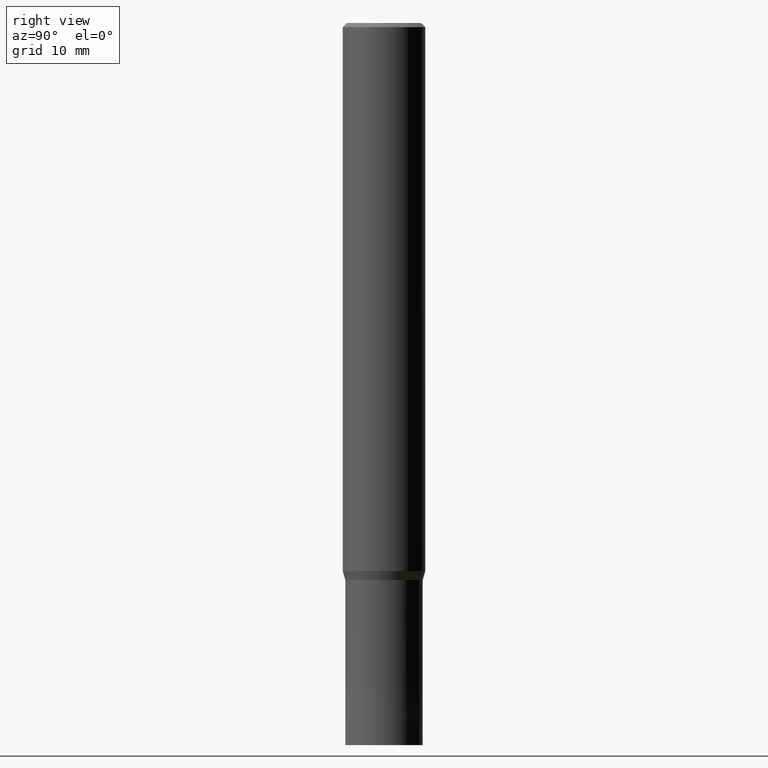
[diagram: clean part render]
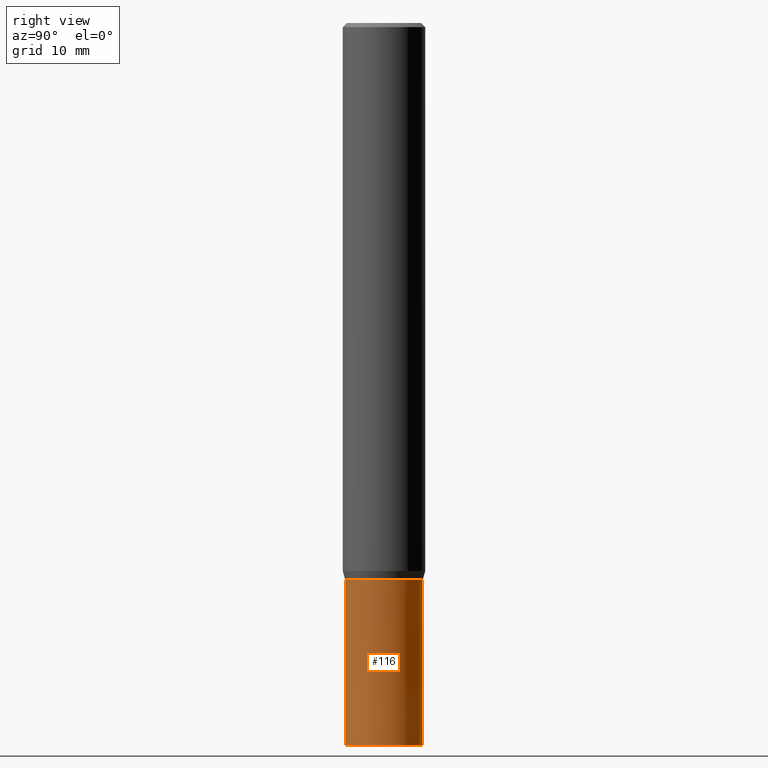
[diagram: same view with one face highlighted and labeled with its STEP entity id]
A machine part, right view. The second image highlights one B-rep face of the part: STEP entity #116.
In plain terms, the highlighted conical surface has half-angle 0 deg.
Its self-contained STEP definition (entity closure, byte-faithful):
#84=EDGE_CURVE('',#106,#118,#205,.T.);
#94=VERTEX_POINT('',#217);
#102=EDGE_CURVE('',#106,#94,#227,.T.);
#106=VERTEX_POINT('',#231);
#116=ADVANCED_FACE('',(#242),#243,.T.);
#118=VERTEX_POINT('',#245);
#136=VERTEX_POINT('',#266);
#148=EDGE_CURVE('',#136,#94,#279,.T.);
#156=EDGE_CURVE('',#118,#136,#287,.T.);
#205=LINE('',#333,#334);
#217=CARTESIAN_POINT('',(4.59215136619853E-016,-3.7499,-54.0));
#227=CIRCLE('',#357,3.7499);
#231=CARTESIAN_POINT('',(0.0,3.7499,-54.0));
#242=FACE_OUTER_BOUND('',#374,.T.);
#243=CONICAL_SURFACE('',#375,3.74995,6.24999999993181E-006);
#245=CARTESIAN_POINT('',(0.0,3.75,-70.0));
#266=CARTESIAN_POINT('',(4.59227382683391E-016,-3.75,-70.0));
#279=LINE('',#419,#420);
#287=CIRCLE('',#430,3.75);
#333=CARTESIAN_POINT('',(-4.59221259651622E-016,3.74995,-62.0));
#334=VECTOR('',#476,1.0);
#357=AXIS2_PLACEMENT_3D('',#503,#504,#505);
#374=EDGE_LOOP('',(#521,#522,#523,#524));
#375=AXIS2_PLACEMENT_3D('',#525,#526,#527);
#419=CARTESIAN_POINT('',(4.59221259651622E-016,-3.74995,-62.0));
#420=VECTOR('',#564,1.0);
#430=AXIS2_PLACEMENT_3D('',#567,#568,#569);
#476=DIRECTION('',(-7.65378971125652E-022,6.24999999989112E-006,-0.999999999980469));
#503=CARTESIAN_POINT('',(0.0,0.0,-54.0));
#504=DIRECTION('',(0.0,0.0,-1.0));
#505=DIRECTION('',(0.0,1.0,0.0));
#521=ORIENTED_EDGE('',*,*,#84,.F.);
#522=ORIENTED_EDGE('',*,*,#102,.T.);
#523=ORIENTED_EDGE('',*,*,#148,.F.);
#524=ORIENTED_EDGE('',*,*,#156,.F.);
#525=CARTESIAN_POINT('',(0.0,0.0,-62.0));
#526=DIRECTION('',(0.0,-0.0,-1.0));
#527=DIRECTION('',(0.0,1.0,0.0));
#564=DIRECTION('',(-7.65378971125652E-022,6.24999999989112E-006,0.999999999980469));
#567=CARTESIAN_POINT('',(0.0,0.0,-70.0));
#568=DIRECTION('',(0.0,0.0,-1.0));
#569=DIRECTION('',(0.0,1.0,0.0));